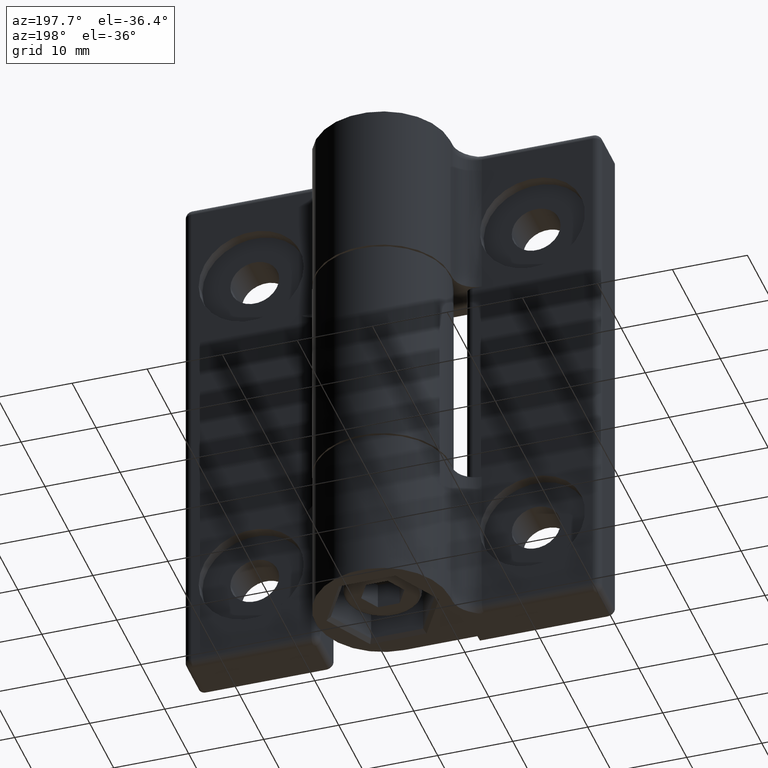
[diagram: clean part render]
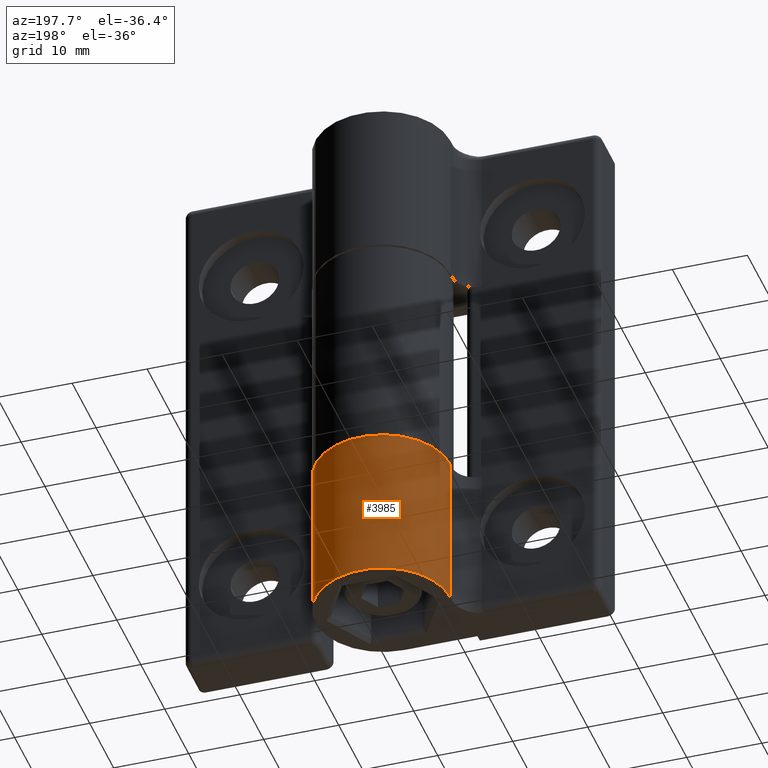
[diagram: same view with one face highlighted and labeled with its STEP entity id]
A machine part, auxiliary view. The second image highlights one B-rep face of the part: STEP entity #3985.
In plain terms, the highlighted cylindrical surface (partial cylindrical patch) has radius 9 mm, axis along (0, 0, -1).
Its self-contained STEP definition (entity closure, byte-faithful):
#551=FACE_OUTER_BOUND('',#730,.T.);
#730=EDGE_LOOP('',(#2741,#2742,#2743,#2744));
#968=LINE('',#5353,#1233);
#971=LINE('',#5363,#1236);
#1233=VECTOR('',#4505,21.);
#1236=VECTOR('',#4516,21.);
#1478=CIRCLE('',#4169,9.);
#1486=CIRCLE('',#4182,9.);
#1594=VERTEX_POINT('',#5326);
#1595=VERTEX_POINT('',#5328);
#1604=VERTEX_POINT('',#5352);
#1607=VERTEX_POINT('',#5362);
#2084=EDGE_CURVE('',#1595,#1594,#1478,.T.);
#2096=EDGE_CURVE('',#1604,#1595,#968,.T.);
#2101=EDGE_CURVE('',#1594,#1607,#971,.T.);
#2102=EDGE_CURVE('',#1604,#1607,#1486,.T.);
#2741=ORIENTED_EDGE('',*,*,#2084,.T.);
#2742=ORIENTED_EDGE('',*,*,#2101,.T.);
#2743=ORIENTED_EDGE('',*,*,#2102,.F.);
#2744=ORIENTED_EDGE('',*,*,#2096,.T.);
#3932=CYLINDRICAL_SURFACE('',#4181,9.);
#3985=ADVANCED_FACE('',(#551),#3932,.T.);
#4169=AXIS2_PLACEMENT_3D('',#5329,#4481,#4482);
#4181=AXIS2_PLACEMENT_3D('',#5361,#4514,#4515);
#4182=AXIS2_PLACEMENT_3D('',#5364,#4517,#4518);
#4481=DIRECTION('center_axis',(0.,1.,0.));
#4482=DIRECTION('ref_axis',(1.,0.,0.));
#4505=DIRECTION('',(0.,-1.,0.));
#4514=DIRECTION('center_axis',(0.,1.,0.));
#4515=DIRECTION('ref_axis',(1.,0.,0.));
#4516=DIRECTION('',(0.,1.,0.));
#4517=DIRECTION('center_axis',(0.,1.,0.));
#4518=DIRECTION('ref_axis',(1.,0.,0.));
#5326=CARTESIAN_POINT('',(27.75,15.,1.));
#5328=CARTESIAN_POINT('',(18.75,15.,10.));
#5329=CARTESIAN_POINT('Origin',(27.75,15.,10.));
#5352=CARTESIAN_POINT('',(18.75,36.,10.));
#5353=CARTESIAN_POINT('',(18.75,0.,10.));
#5361=CARTESIAN_POINT('Origin',(27.75,0.,10.));
#5362=CARTESIAN_POINT('',(27.75,36.,1.));
#5363=CARTESIAN_POINT('',(27.75,0.,1.));
#5364=CARTESIAN_POINT('Origin',(27.75,36.,10.));